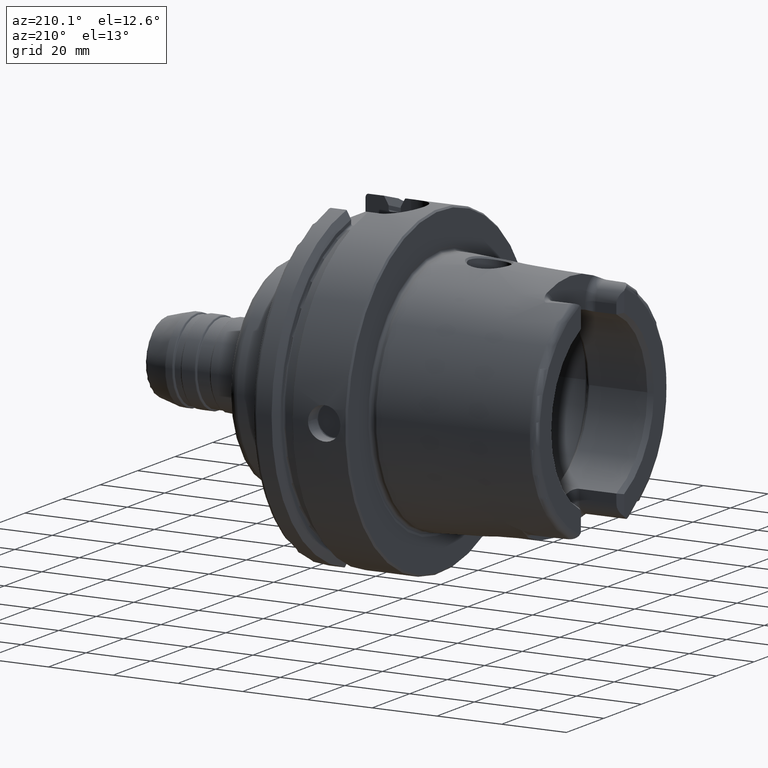
[diagram: clean part render]
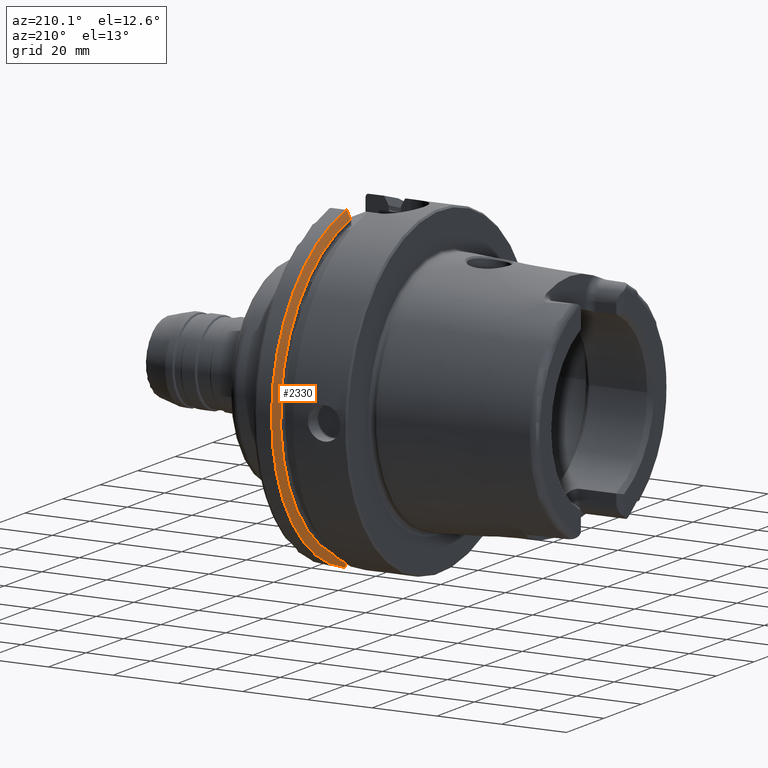
[diagram: same view with one face highlighted and labeled with its STEP entity id]
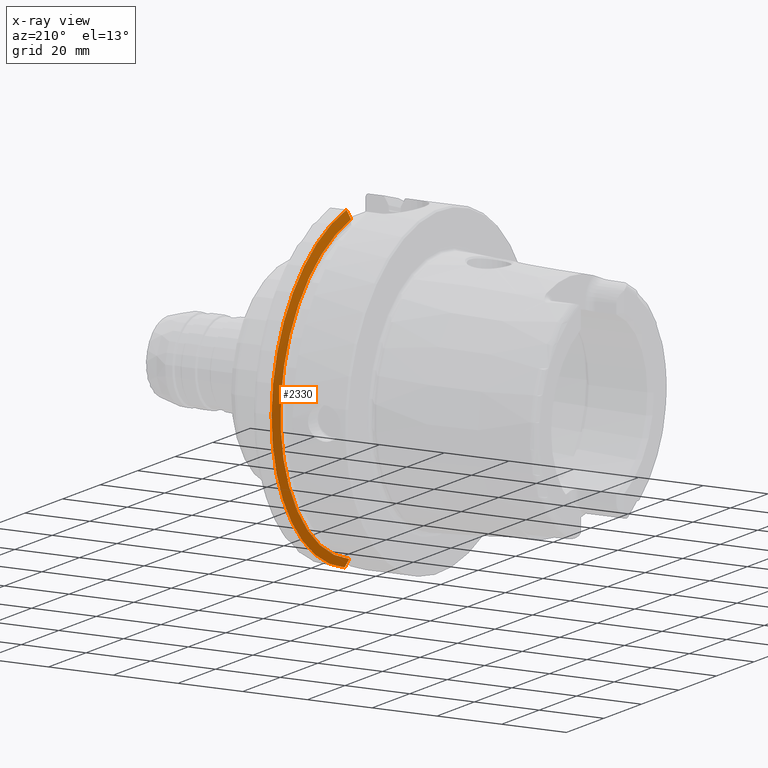
[diagram: x-ray of the same camera — body ghosted, the highlighted face saturated]
A machine part, auxiliary view. The second image highlights one B-rep face of the part: STEP entity #2330.
The next image is the same camera in x-ray: the body ghosted, the highlighted face saturated — about 0% of this face is hidden behind the body in this view.
In plain terms, the highlighted conical surface has half-angle 60 deg.
Its self-contained STEP definition (entity closure, byte-faithful):
#24=(
BOUNDED_CURVE()
B_SPLINE_CURVE(2,(#4753,#4754,#4755),.UNSPECIFIED.,.F.,.F.)
B_SPLINE_CURVE_WITH_KNOTS((3,3),(0.,0.28292349080556),.UNSPECIFIED.)
CURVE()
GEOMETRIC_REPRESENTATION_ITEM()
RATIONAL_B_SPLINE_CURVE((1.,1.0003193410929,1.))
REPRESENTATION_ITEM('')
);
#27=(
BOUNDED_CURVE()
B_SPLINE_CURVE(2,(#4844,#4845,#4846),.UNSPECIFIED.,.F.,.F.)
B_SPLINE_CURVE_WITH_KNOTS((3,3),(0.,0.281931851964124),.UNSPECIFIED.)
CURVE()
GEOMETRIC_REPRESENTATION_ITEM()
RATIONAL_B_SPLINE_CURVE((1.,1.00031639802473,1.))
REPRESENTATION_ITEM('')
);
#152=CONICAL_SURFACE('',#2616,48.7987976320958,1.0471975511966);
#274=FACE_OUTER_BOUND('',#415,.T.);
#415=EDGE_LOOP('',(#1942,#1943,#1944,#1945));
#819=CIRCLE('',#2613,50.);
#821=CIRCLE('',#2617,47.5975952641917);
#1061=VERTEX_POINT('',#4750);
#1062=VERTEX_POINT('',#4752);
#1075=VERTEX_POINT('',#4836);
#1076=VERTEX_POINT('',#4842);
#1367=EDGE_CURVE('',#1062,#1061,#24,.T.);
#1388=EDGE_CURVE('',#1062,#1075,#819,.T.);
#1391=EDGE_CURVE('',#1061,#1076,#821,.T.);
#1392=EDGE_CURVE('',#1076,#1075,#27,.T.);
#1942=ORIENTED_EDGE('',*,*,#1367,.T.);
#1943=ORIENTED_EDGE('',*,*,#1391,.T.);
#1944=ORIENTED_EDGE('',*,*,#1392,.T.);
#1945=ORIENTED_EDGE('',*,*,#1388,.F.);
#2330=ADVANCED_FACE('',(#274),#152,.T.);
#2613=AXIS2_PLACEMENT_3D('',#4837,#3221,#3222);
#2616=AXIS2_PLACEMENT_3D('',#4841,#3228,#3229);
#2617=AXIS2_PLACEMENT_3D('',#4843,#3230,#3231);
#3221=DIRECTION('center_axis',(1.,0.,0.));
#3222=DIRECTION('ref_axis',(0.,0.,-1.));
#3228=DIRECTION('center_axis',(1.,0.,0.));
#3229=DIRECTION('ref_axis',(0.,1.,0.));
#3230=DIRECTION('center_axis',(1.,0.,0.));
#3231=DIRECTION('ref_axis',(0.,0.,-1.));
#4750=CARTESIAN_POINT('',(21.875,11.,-46.3090819919138));
#4752=CARTESIAN_POINT('',(23.2620290209214,11.,-48.7749935930288));
#4753=CARTESIAN_POINT('Ctrl Pts',(23.2620290209214,11.,-48.7749935930288));
#4754=CARTESIAN_POINT('Ctrl Pts',(22.5505288964237,11.,-47.5116880808802));
#4755=CARTESIAN_POINT('Ctrl Pts',(21.875,11.,-46.3090819919138));
#4836=CARTESIAN_POINT('',(23.2620290209214,10.,48.9897948556636));
#4837=CARTESIAN_POINT('Origin',(23.2620290209214,0.,0.));
#4841=CARTESIAN_POINT('Origin',(22.5685145104607,0.,0.));
#4842=CARTESIAN_POINT('',(21.875,10.,46.5352670018535));
#4843=CARTESIAN_POINT('Origin',(21.875,0.,0.));
#4844=CARTESIAN_POINT('Ctrl Pts',(21.875,10.,46.5352670018535));
#4845=CARTESIAN_POINT('Ctrl Pts',(22.5506945724782,10.,47.7323213251992));
#4846=CARTESIAN_POINT('Ctrl Pts',(23.2620290209214,10.,48.9897948556636));